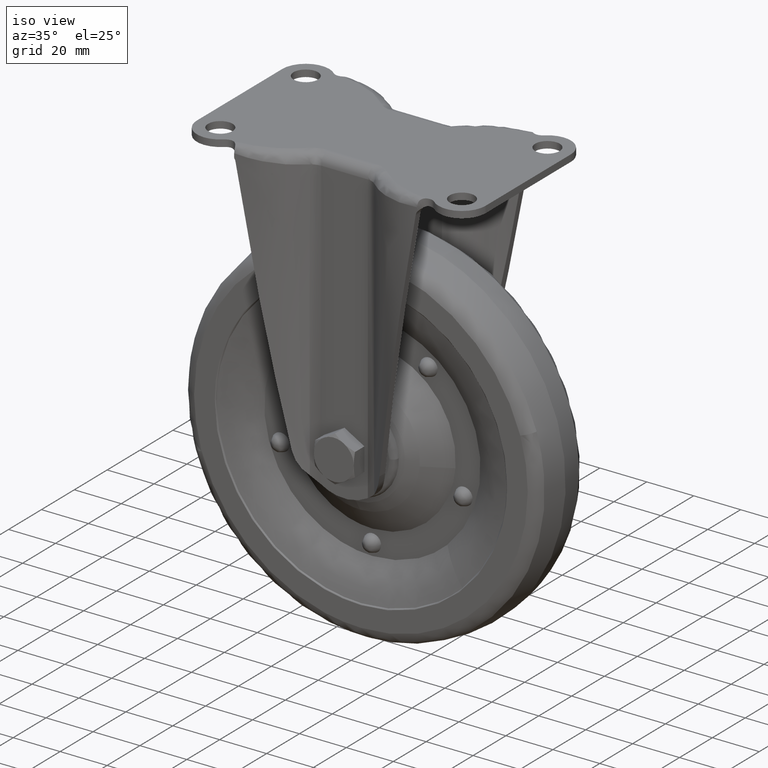
[diagram: clean part render]
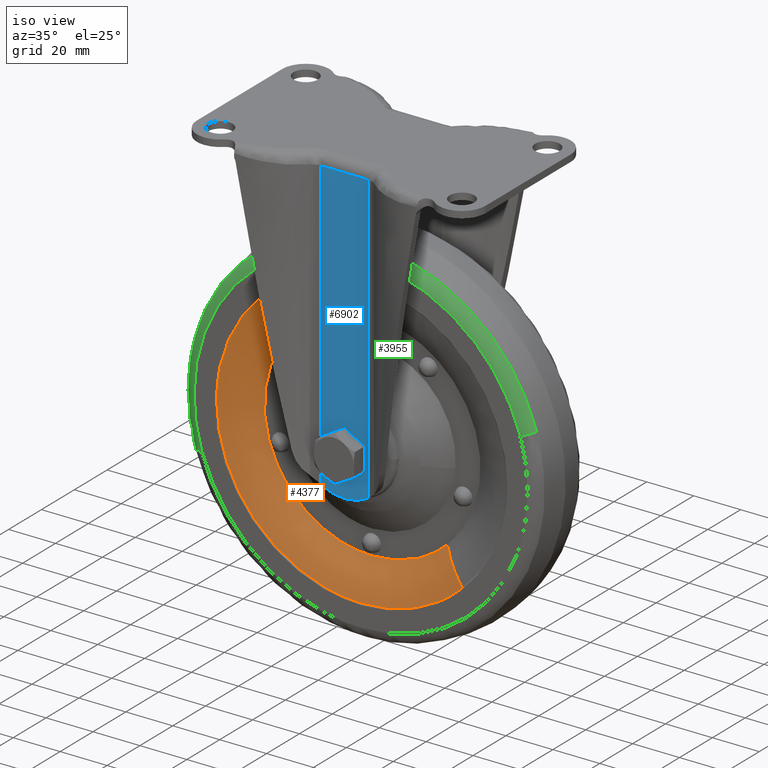
[diagram: same view with three faces highlighted in distinct colors, each labeled with its STEP entity id]
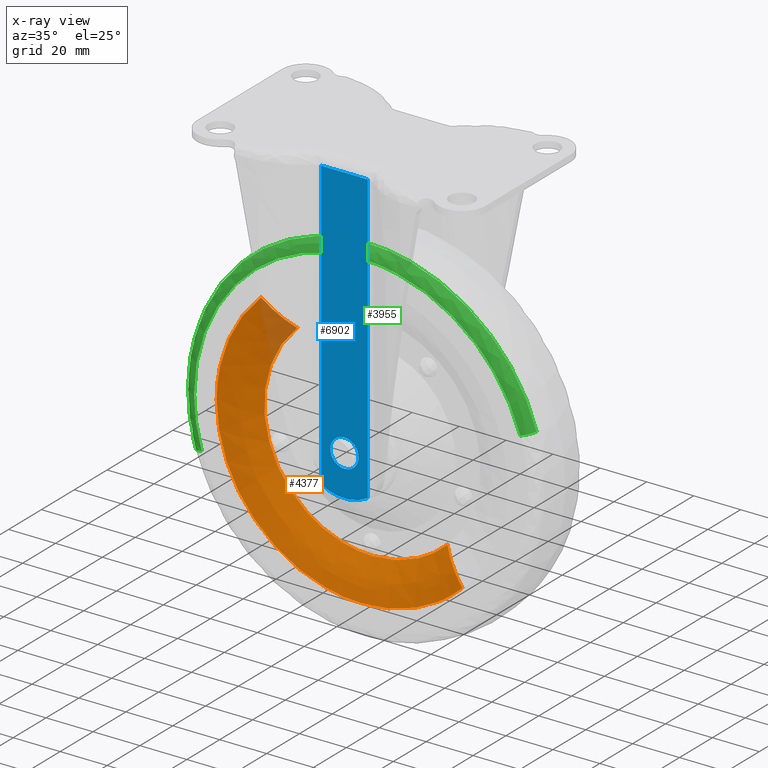
[diagram: x-ray of the same camera — body ghosted, the three highlighted faces saturated]
A machine part, iso view with three faces highlighted in distinct colors.
The next image is the same camera in x-ray (body ghosted, the three faces saturated) — at least one of them is partly hidden behind the body in this view.
Their STEP definitions:

[orange] entity #4377 — the highlighted face is a freeform B-spline surface patch.
#4091=CARTESIAN_POINT('',(-61.849999999930688,-13.500000000356600,-112.500000000000000));
#4092=VERTEX_POINT('',#4091);
#4106=CARTESIAN_POINT('',(-42.902456964330469,-13.499999999953820,-67.948886810893953));
#4107=VERTEX_POINT('',#4106);
#4108=CARTESIAN_POINT('',(-42.902456964330483,-13.499999999953822,-67.948886810893953));
#4109=CARTESIAN_POINT('',(-61.849999999792800,-13.500000000152282,-86.195258034105038));
#4110=CARTESIAN_POINT('',(-61.849999999930688,-13.500000000356595,-112.499999999999960));
#4118=(BOUNDED_CURVE()B_SPLINE_CURVE(2,(#4108,#4109,#4110),.UNSPECIFIED.,.F.,.U.)B_SPLINE_CURVE_WITH_KNOTS((3,3),(0.622155737437377,0.749999999999589),.UNSPECIFIED.)CURVE()GEOMETRIC_REPRESENTATION_ITEM()RATIONAL_B_SPLINE_CURVE((0.853629213191970,0.850221129724816,0.999999999999036))REPRESENTATION_ITEM(''));
#4119=EDGE_CURVE('',#4107,#4092,#4118,.T.);
#4166=CARTESIAN_POINT('',(42.902456964330483,-13.499999999953820,-157.051113189106100));
#4167=VERTEX_POINT('',#4166);
#4181=CARTESIAN_POINT('',(0.0,-13.500000000000000,-174.349999999999990));
#4182=VERTEX_POINT('',#4181);
#4183=CARTESIAN_POINT('',(0.0,-13.500000000000000,-174.349999999999990));
#4184=CARTESIAN_POINT('',(24.938808286003095,-13.499999999976914,-174.349999999897450));
#4185=CARTESIAN_POINT('',(42.902456964330476,-13.499999999953820,-157.051113189106080));
#4193=(BOUNDED_CURVE()B_SPLINE_CURVE(2,(#4183,#4184,#4185),.UNSPECIFIED.,.F.,.U.)B_SPLINE_CURVE_WITH_KNOTS((3,3),(0.0,0.122155737437377),.UNSPECIFIED.)CURVE()GEOMETRIC_REPRESENTATION_ITEM()RATIONAL_B_SPLINE_CURVE((1.0,0.856885651461742,0.853629213191970))REPRESENTATION_ITEM(''));
#4194=EDGE_CURVE('',#4182,#4167,#4193,.T.);
#4196=CARTESIAN_POINT('',(-61.849999999930702,-13.500000000356598,-112.500000000000060));
#4197=CARTESIAN_POINT('',(-61.850000000138770,-13.500000000185187,-174.350000000041290));
#4198=CARTESIAN_POINT('',(0.0,-13.500000000000000,-174.349999999999990));
#4206=(BOUNDED_CURVE()B_SPLINE_CURVE(2,(#4196,#4197,#4198),.UNSPECIFIED.,.F.,.U.)B_SPLINE_CURVE_WITH_KNOTS((3,3),(0.749999999999589,1.0),.UNSPECIFIED.)CURVE()GEOMETRIC_REPRESENTATION_ITEM()RATIONAL_B_SPLINE_CURVE((1.000000000000964,0.707106781186065,1.0))REPRESENTATION_ITEM(''));
#4207=EDGE_CURVE('',#4092,#4182,#4206,.T.);
#4248=CARTESIAN_POINT('',(-31.980364730992960,-7.000000000124474,-79.290693359501375));
#4249=VERTEX_POINT('',#4248);
#4250=CARTESIAN_POINT('',(-42.902456964330476,-13.499999999953815,-67.948886810893953));
#4251=CARTESIAN_POINT('',(-36.911713510880325,-12.099845049632908,-74.169842638750538));
#4252=CARTESIAN_POINT('',(-31.980364730992971,-7.000000000124474,-79.290693359501375));
#4260=(BOUNDED_CURVE()B_SPLINE_CURVE(2,(#4250,#4251,#4252),.UNSPECIFIED.,.F.,.U.)B_SPLINE_CURVE_WITH_KNOTS((3,3),(-1.419557446902914,-0.573254360863604),.UNSPECIFIED.)CURVE()GEOMETRIC_REPRESENTATION_ITEM()RATIONAL_B_SPLINE_CURVE((0.942495856574530,0.917715686593643,0.942920410176702))REPRESENTATION_ITEM(''));
#4261=EDGE_CURVE('',#4107,#4249,#4260,.T.);
#4278=CARTESIAN_POINT('',(31.980364730992971,-7.000000000124478,-145.709306640498600));
#4279=VERTEX_POINT('',#4278);
#4295=CARTESIAN_POINT('',(42.902456964330476,-13.499999999953827,-157.051113189106080));
#4296=CARTESIAN_POINT('',(36.911713510880332,-12.099845049632918,-150.830157361249460));
#4297=CARTESIAN_POINT('',(31.980364730992971,-7.000000000124478,-145.709306640498710));
#4305=(BOUNDED_CURVE()B_SPLINE_CURVE(2,(#4295,#4296,#4297),.UNSPECIFIED.,.F.,.U.)B_SPLINE_CURVE_WITH_KNOTS((3,3),(-1.419557446902916,-0.573254360863604),.UNSPECIFIED.)CURVE()GEOMETRIC_REPRESENTATION_ITEM()RATIONAL_B_SPLINE_CURVE((0.942495856574530,0.917715686593643,0.942920410176702))REPRESENTATION_ITEM(''));
#4306=EDGE_CURVE('',#4167,#4279,#4305,.T.);
#4311=CARTESIAN_POINT('',(-42.223005519337249,-13.626427341877568,-66.127796532945823));
#4312=CARTESIAN_POINT('',(-42.850543595779506,-13.626427341877568,-66.732111967304448));
#4313=CARTESIAN_POINT('',(-88.641926340734230,-13.626427341877564,-110.828941135480190));
#4314=CARTESIAN_POINT('',(-45.156492602627019,-13.626427341877569,-155.985433738107250));
#4315=CARTESIAN_POINT('',(-1.671058864519816,-13.626427341877564,-201.141926340734240));
#4316=CARTESIAN_POINT('',(44.120323880441930,-13.626427341877561,-157.045097172551750));
#4317=CARTESIAN_POINT('',(44.747861956891043,-13.626427341877561,-156.440781738186500));
#4318=CARTESIAN_POINT('',(-35.784681405869428,-12.299809463675691,-73.198806095252735));
#4319=CARTESIAN_POINT('',(-36.316530094974553,-12.299809463675684,-73.710973218866656));
#4320=CARTESIAN_POINT('',(-75.125469025481848,-12.299809463675688,-111.083750532635350));
#4321=CARTESIAN_POINT('',(-38.270859246423235,-12.299809463675688,-149.354609779058590));
#4322=CARTESIAN_POINT('',(-1.416249467364637,-12.299809463675688,-187.625469025481750));
#4323=CARTESIAN_POINT('',(37.392689463148592,-12.299809463675691,-150.252691711707430));
#4324=CARTESIAN_POINT('',(37.924538152259530,-12.299809463675688,-149.740524588087960));
#4325=CARTESIAN_POINT('',(-30.590872545519748,-6.496995746320359,-78.903003564824616));
#4326=CARTESIAN_POINT('',(-31.045528415649930,-6.496995746320359,-79.340834462989577));
#4327=CARTESIAN_POINT('',(-64.221716041433396,-6.496995746320359,-111.289305779827170));
#4328=CARTESIAN_POINT('',(-32.716205130803090,-6.496995746320359,-144.005510910630280));
#4329=CARTESIAN_POINT('',(-1.210694220172819,-6.496995746320359,-176.721716041433350));
#4330=CARTESIAN_POINT('',(31.965493405615700,-6.496995746320359,-144.773244724590850));
#4331=CARTESIAN_POINT('',(32.420149275750838,-6.496995746320360,-144.335413826421160));
#4339=(BOUNDED_SURFACE()B_SPLINE_SURFACE(2,2,((#4311,#4318,#4325),(#4312,#4319,#4326),(#4313,#4320,#4327),(#4314,#4321,#4328),(#4315,#4322,#4329),(#4316,#4323,#4330),(#4317,#4324,#4331)),.UNSPECIFIED.,.F.,.F.,.U.)B_SPLINE_SURFACE_WITH_KNOTS((3,1,2,1,3),(3,3),(0.0,2.077378571568401,105.946307150488810,209.815235729409210,211.892614301000690),(0.0,18.994429803894640),.UNSPECIFIED.)GEOMETRIC_REPRESENTATION_ITEM()RATIONAL_B_SPLINE_SURFACE(((0.956168598044759,0.925815223796504,0.956641035988430),(0.950632353219276,0.920454725917178,0.951102055733100),(0.668283867118266,0.647069334070233,0.668614062709939),(0.945096108393792,0.915094228037851,0.945563075477770),(0.668283867118266,0.647069334070233,0.668614062709939),(0.950632353219337,0.920454725917237,0.951102055733162),(0.956168598044882,0.925815223796623,0.956641035988553)))REPRESENTATION_ITEM('')SURFACE());
#4340=ORIENTED_EDGE('',*,*,#4194,.T.);
#4341=ORIENTED_EDGE('',*,*,#4306,.T.);
#4342=CARTESIAN_POINT('',(0.0,-6.999999999999968,-158.604249000000100));
#4343=VERTEX_POINT('',#4342);
#4344=CARTESIAN_POINT('',(0.0,-6.999999999999968,-158.604249000000100));
#4345=CARTESIAN_POINT('',(18.589895343403331,-7.000000000062224,-158.604249000062620));
#4346=CARTESIAN_POINT('',(31.980364730992971,-7.000000000124478,-145.709306640498600));
#4354=(BOUNDED_CURVE()B_SPLINE_CURVE(2,(#4344,#4345,#4346),.UNSPECIFIED.,.F.,.U.)B_SPLINE_CURVE_WITH_KNOTS((3,3),(0.0,0.122155737437384),.UNSPECIFIED.)CURVE()GEOMETRIC_REPRESENTATION_ITEM()RATIONAL_B_SPLINE_CURVE((1.0,0.856885651461735,0.853629213191970))REPRESENTATION_ITEM(''));
#4355=EDGE_CURVE('',#4343,#4279,#4354,.T.);
#4356=ORIENTED_EDGE('',*,*,#4355,.F.);
#4357=CARTESIAN_POINT('',(-31.980364730992964,-7.000000000124475,-79.290693359501375));
#4358=CARTESIAN_POINT('',(-46.104249000110080,-7.000000000113799,-92.891909886995961));
#4359=CARTESIAN_POINT('',(-46.104249000084479,-7.000000000087323,-112.499999999912300));
#4360=CARTESIAN_POINT('',(-46.104249000024275,-7.000000000025070,-158.604248999974860));
#4361=CARTESIAN_POINT('',(0.0,-6.999999999999968,-158.604249000000100));
#4369=(BOUNDED_CURVE()B_SPLINE_CURVE(2,(#4357,#4358,#4359,#4360,#4361),.UNSPECIFIED.,.F.,.U.)B_SPLINE_CURVE_WITH_KNOTS((3,2,3),(0.622155737437383,0.750000000000000,1.0),.UNSPECIFIED.)CURVE()GEOMETRIC_REPRESENTATION_ITEM()RATIONAL_B_SPLINE_CURVE((0.853629213191970,0.850221129724812,1.0,0.707106781186547,1.0))REPRESENTATION_ITEM(''));
#4370=EDGE_CURVE('',#4249,#4343,#4369,.T.);
#4371=ORIENTED_EDGE('',*,*,#4370,.F.);
#4372=ORIENTED_EDGE('',*,*,#4261,.F.);
#4373=ORIENTED_EDGE('',*,*,#4119,.T.);
#4374=ORIENTED_EDGE('',*,*,#4207,.T.);
#4375=EDGE_LOOP('',(#4340,#4341,#4356,#4371,#4372,#4373,#4374));
#4376=FACE_OUTER_BOUND('',#4375,.T.);
#4377=ADVANCED_FACE('',(#4376),#4339,.T.);

[blue] entity #6902 — the highlighted face is a freeform B-spline surface patch.
#5635=CARTESIAN_POINT('',(5.981503005434396,-24.0,-112.970754496505610));
#5636=VERTEX_POINT('',#5635);
#5642=CARTESIAN_POINT('',(0.0,-24.0,-106.500001000000000));
#5643=VERTEX_POINT('',#5642);
#5644=CARTESIAN_POINT('',(5.981503005434398,-24.000000000000004,-112.970754496505610));
#5645=CARTESIAN_POINT('',(5.999999000000000,-24.000000000000004,-112.735740603056120));
#5646=CARTESIAN_POINT('',(5.999999000000000,-24.0,-112.500000000000000));
#5647=CARTESIAN_POINT('',(5.999998999999999,-23.999999999999996,-106.500001000000030));
#5648=CARTESIAN_POINT('',(0.0,-24.0,-106.500001000000000));
#5656=(BOUNDED_CURVE()B_SPLINE_CURVE(2,(#5644,#5645,#5646,#5647,#5648),.UNSPECIFIED.,.F.,.U.)B_SPLINE_CURVE_WITH_KNOTS((3,2,3),(0.736331300615639,0.750000000000000,1.0),.UNSPECIFIED.)CURVE()GEOMETRIC_REPRESENTATION_ITEM()RATIONAL_B_SPLINE_CURVE((0.969723356136071,0.983986122561284,1.0,0.707106781186548,1.0))REPRESENTATION_ITEM(''));
#5657=EDGE_CURVE('',#5636,#5643,#5656,.T.);
#5659=CARTESIAN_POINT('',(-5.981503005434396,-24.0,-112.029245503494390));
#5660=VERTEX_POINT('',#5659);
#5661=CARTESIAN_POINT('',(0.0,-24.0,-106.500001000000000));
#5662=CARTESIAN_POINT('',(-5.546342025002863,-24.0,-106.500001000000040));
#5663=CARTESIAN_POINT('',(-5.981503005434398,-24.000000000000004,-112.029245503494350));
#5671=(BOUNDED_CURVE()B_SPLINE_CURVE(2,(#5661,#5662,#5663),.UNSPECIFIED.,.F.,.U.)B_SPLINE_CURVE_WITH_KNOTS((3,3),(0.0,0.236331300615639),.UNSPECIFIED.)CURVE()GEOMETRIC_REPRESENTATION_ITEM()RATIONAL_B_SPLINE_CURVE((1.0,0.723120658625264,0.969723356136070))REPRESENTATION_ITEM(''));
#5672=EDGE_CURVE('',#5643,#5660,#5671,.T.);
#5718=CARTESIAN_POINT('',(0.0,-24.0,-118.499999000000000));
#5719=VERTEX_POINT('',#5718);
#5720=CARTESIAN_POINT('',(-5.981503005434398,-24.000000000000007,-112.029245503494370));
#5721=CARTESIAN_POINT('',(-5.999998999999999,-23.999999999999996,-112.264259396943900));
#5722=CARTESIAN_POINT('',(-5.999999000000000,-24.0,-112.500000000000000));
#5723=CARTESIAN_POINT('',(-5.999998999999999,-23.999999999999996,-118.499998999999990));
#5724=CARTESIAN_POINT('',(0.0,-24.0,-118.499999000000000));
#5732=(BOUNDED_CURVE()B_SPLINE_CURVE(2,(#5720,#5721,#5722,#5723,#5724),.UNSPECIFIED.,.F.,.U.)B_SPLINE_CURVE_WITH_KNOTS((3,2,3),(0.236331300615639,0.250000000000000,0.500000000000000),.UNSPECIFIED.)CURVE()GEOMETRIC_REPRESENTATION_ITEM()RATIONAL_B_SPLINE_CURVE((0.969723356136070,0.983986122561284,1.0,0.707106781186548,1.0))REPRESENTATION_ITEM(''));
#5733=EDGE_CURVE('',#5660,#5719,#5732,.T.);
#5735=CARTESIAN_POINT('',(0.0,-24.0,-118.499999000000000));
#5736=CARTESIAN_POINT('',(5.546342025002852,-24.000000000000004,-118.499999000000000));
#5737=CARTESIAN_POINT('',(5.981503005434396,-24.000000000000004,-112.970754496505620));
#5745=(BOUNDED_CURVE()B_SPLINE_CURVE(2,(#5735,#5736,#5737),.UNSPECIFIED.,.F.,.U.)B_SPLINE_CURVE_WITH_KNOTS((3,3),(0.500000000000000,0.736331300615638),.UNSPECIFIED.)CURVE()GEOMETRIC_REPRESENTATION_ITEM()RATIONAL_B_SPLINE_CURVE((1.0,0.723120658625264,0.969723356136070))REPRESENTATION_ITEM(''));
#5746=EDGE_CURVE('',#5719,#5636,#5745,.T.);
#6727=CARTESIAN_POINT('',(-9.973044000000000,-24.0,-127.172150848835000));
#6728=VERTEX_POINT('',#6727);
#6729=CARTESIAN_POINT('',(-9.973044000000000,-24.0,-4.400000000000000));
#6730=VERTEX_POINT('',#6729);
#6731=CARTESIAN_POINT('',(-9.973044000000000,-24.0,-127.172150848835000));
#6732=CARTESIAN_POINT('',(-9.973044000000000,-24.0,-4.400000000000000));
#6733=QUASI_UNIFORM_CURVE('',1,(#6731,#6732),.UNSPECIFIED.,.F.,.U.);
#6734=EDGE_CURVE('',#6728,#6730,#6733,.T.);
#6793=CARTESIAN_POINT('',(9.973044000000000,-24.0,-4.400000000000000));
#6794=VERTEX_POINT('',#6793);
#6808=CARTESIAN_POINT('',(9.973044000000000,-24.0,-127.172150848835000));
#6809=VERTEX_POINT('',#6808);
#6810=CARTESIAN_POINT('',(9.973044000000000,-24.0,-127.172150848835000));
#6811=CARTESIAN_POINT('',(9.973044000000000,-24.0,-4.400000000000000));
#6812=QUASI_UNIFORM_CURVE('',1,(#6810,#6811),.UNSPECIFIED.,.F.,.U.);
#6813=EDGE_CURVE('',#6809,#6794,#6812,.T.);
#6869=CARTESIAN_POINT('',(-10.969351056940610,-24.0,-136.273722019252090));
#6870=CARTESIAN_POINT('',(-10.969351056940610,-24.0,1.873723233061894));
#6871=CARTESIAN_POINT('',(10.969351591936380,-24.0,-136.273722019252090));
#6872=CARTESIAN_POINT('',(10.969351591936380,-24.0,1.873723233061894));
#6873=B_SPLINE_SURFACE_WITH_KNOTS('',1,1,((#6869,#6871),(#6870,#6872)),.UNSPECIFIED.,.F.,.F.,.U.,(2,2),(2,2),(0.0,138.147445252313990),(0.0,21.938702648877001),.UNSPECIFIED.);
#6874=ORIENTED_EDGE('',*,*,#6813,.T.);
#6875=CARTESIAN_POINT('',(9.973044000000000,-24.0,-4.400000000000000));
#6876=CARTESIAN_POINT('',(-9.973044000000000,-24.0,-4.400000000000000));
#6877=QUASI_UNIFORM_CURVE('',1,(#6875,#6876),.UNSPECIFIED.,.F.,.U.);
#6878=EDGE_CURVE('',#6794,#6730,#6877,.T.);
#6879=ORIENTED_EDGE('',*,*,#6878,.T.);
#6880=ORIENTED_EDGE('',*,*,#6734,.F.);
#6881=CARTESIAN_POINT('',(9.973044000000060,-24.0,-127.172150848835100));
#6882=CARTESIAN_POINT('',(6.070873E-015,-23.999999999999996,-133.322329684633640));
#6883=CARTESIAN_POINT('',(-9.973044000000055,-24.0,-127.172150848835100));
#6891=(BOUNDED_CURVE()B_SPLINE_CURVE(2,(#6881,#6882,#6883),.UNSPECIFIED.,.F.,.U.)CURVE()GEOMETRIC_REPRESENTATION_ITEM()QUASI_UNIFORM_CURVE()RATIONAL_B_SPLINE_CURVE((1.0,0.851165720725804,1.0))REPRESENTATION_ITEM(''));
#6892=EDGE_CURVE('',#6809,#6728,#6891,.T.);
#6893=ORIENTED_EDGE('',*,*,#6892,.F.);
#6894=EDGE_LOOP('',(#6874,#6879,#6880,#6893));
#6895=FACE_OUTER_BOUND('',#6894,.T.);
#6896=ORIENTED_EDGE('',*,*,#5746,.F.);
#6897=ORIENTED_EDGE('',*,*,#5733,.F.);
#6898=ORIENTED_EDGE('',*,*,#5672,.F.);
#6899=ORIENTED_EDGE('',*,*,#5657,.F.);
#6900=EDGE_LOOP('',(#6896,#6897,#6898,#6899));
#6901=FACE_BOUND('',#6900,.T.);
#6902=ADVANCED_FACE('',(#6895,#6901),#6873,.F.);

[green] entity #3955 — the highlighted face is a freeform B-spline surface patch.
#3664=CARTESIAN_POINT('',(-72.462638396259450,-10.500000000559609,-135.041853536070190));
#3665=VERTEX_POINT('',#3664);
#3679=CARTESIAN_POINT('',(-21.629505322045979,-10.500000000024670,-39.759821118315131));
#3680=VERTEX_POINT('',#3679);
#3681=CARTESIAN_POINT('',(-21.629505322045983,-10.500000000024674,-39.759821118315131));
#3682=CARTESIAN_POINT('',(-75.887872049510420,-10.500000000248258,-55.893705443886780));
#3683=CARTESIAN_POINT('',(-75.887872049447324,-10.500000000478069,-112.499999999954100));
#3684=CARTESIAN_POINT('',(-75.887872049434478,-10.500000000524887,-124.031158819470430));
#3685=CARTESIAN_POINT('',(-72.462638396259450,-10.500000000559609,-135.041853536070280));
#3693=(BOUNDED_CURVE()B_SPLINE_CURVE(2,(#3681,#3682,#3683,#3684,#3685),.UNSPECIFIED.,.F.,.U.)B_SPLINE_CURVE_WITH_KNOTS((3,2,3),(0.548526662064657,0.750000000000000,0.800541362318723),.UNSPECIFIED.)CURVE()GEOMETRIC_REPRESENTATION_ITEM()RATIONAL_B_SPLINE_CURVE((0.908365862590212,0.763959302188107,1.0,0.940787110829009,0.905515822342253))REPRESENTATION_ITEM(''));
#3694=EDGE_CURVE('',#3680,#3665,#3693,.T.);
#3743=CARTESIAN_POINT('',(0.0,-10.499999999999860,-36.612127950406922));
#3744=VERTEX_POINT('',#3743);
#3745=CARTESIAN_POINT('',(0.0,-10.499999999999860,-36.612127950406922));
#3746=CARTESIAN_POINT('',(-11.043791007760298,-10.500000000007084,-36.612127950402616));
#3747=CARTESIAN_POINT('',(-21.629505322045983,-10.500000000024674,-39.759821118315131));
#3755=(BOUNDED_CURVE()B_SPLINE_CURVE(2,(#3745,#3746,#3747),.UNSPECIFIED.,.F.,.U.)B_SPLINE_CURVE_WITH_KNOTS((3,3),(0.500000000000000,0.548526662064657),.UNSPECIFIED.)CURVE()GEOMETRIC_REPRESENTATION_ITEM()RATIONAL_B_SPLINE_CURVE((1.0,0.943147478998440,0.908365862590212))REPRESENTATION_ITEM(''));
#3756=EDGE_CURVE('',#3744,#3680,#3755,.T.);
#3758=CARTESIAN_POINT('',(72.462638396259450,-10.500000000559609,-89.958146463929751));
#3759=VERTEX_POINT('',#3758);
#3760=CARTESIAN_POINT('',(72.462638396259450,-10.500000000559609,-89.958146463929751));
#3761=CARTESIAN_POINT('',(55.867629400297609,-10.500000000279735,-36.612127950433070));
#3762=CARTESIAN_POINT('',(0.0,-10.499999999999860,-36.612127950406922));
#3770=(BOUNDED_CURVE()B_SPLINE_CURVE(2,(#3760,#3761,#3762),.UNSPECIFIED.,.F.,.U.)B_SPLINE_CURVE_WITH_KNOTS((3,3),(0.300541362318724,0.500000000000000),.UNSPECIFIED.)CURVE()GEOMETRIC_REPRESENTATION_ITEM()RATIONAL_B_SPLINE_CURVE((0.905515822342253,0.766319670357539,1.0))REPRESENTATION_ITEM(''));
#3771=EDGE_CURVE('',#3759,#3744,#3770,.T.);
#3826=CARTESIAN_POINT('',(67.908224761148844,-14.0,-91.374944518039996));
#3827=VERTEX_POINT('',#3826);
#3828=CARTESIAN_POINT('',(72.462638396259450,-10.500000000559609,-89.958146463929751));
#3829=CARTESIAN_POINT('',(71.411619864747024,-14.000000022114712,-90.285099861024833));
#3830=CARTESIAN_POINT('',(67.908224761148844,-14.000000000000002,-91.374944518040010));
#3838=(BOUNDED_CURVE()B_SPLINE_CURVE(2,(#3828,#3829,#3830),.UNSPECIFIED.,.F.,.U.)B_SPLINE_CURVE_WITH_KNOTS((3,3),(-1.686452685997183,-0.324444350105429),.UNSPECIFIED.)CURVE()GEOMETRIC_REPRESENTATION_ITEM()RATIONAL_B_SPLINE_CURVE((0.900657974378209,0.725008789270081,0.897869645990016))REPRESENTATION_ITEM(''));
#3839=EDGE_CURVE('',#3759,#3827,#3838,.T.);
#3858=CARTESIAN_POINT('',(-67.908224761148858,-14.0,-133.625055481960000));
#3859=VERTEX_POINT('',#3858);
#3873=CARTESIAN_POINT('',(-72.462638396259450,-10.500000000559609,-135.041853536070190));
#3874=CARTESIAN_POINT('',(-71.411619864746982,-14.000000022114705,-134.714900138975140));
#3875=CARTESIAN_POINT('',(-67.908224761148858,-14.0,-133.625055481959950));
#3883=(BOUNDED_CURVE()B_SPLINE_CURVE(2,(#3873,#3874,#3875),.UNSPECIFIED.,.F.,.U.)B_SPLINE_CURVE_WITH_KNOTS((3,3),(-1.686452685997181,-0.324444350105430),.UNSPECIFIED.)CURVE()GEOMETRIC_REPRESENTATION_ITEM()RATIONAL_B_SPLINE_CURVE((0.900657974378208,0.725008789270082,0.897869645990015))REPRESENTATION_ITEM(''));
#3884=EDGE_CURVE('',#3665,#3859,#3883,.T.);
#3889=CARTESIAN_POINT('',(73.169357159183321,-10.218933965876980,-91.962486868147948));
#3890=CARTESIAN_POINT('',(72.855765909419972,-10.218933965876982,-90.954422056642230));
#3891=CARTESIAN_POINT('',(49.973047740875060,-10.218933965876980,-17.396046321604683));
#3892=CARTESIAN_POINT('',(-22.565452968760127,-10.218933965876980,-39.961499290364813));
#3893=CARTESIAN_POINT('',(-95.103953678395314,-10.218933965876980,-62.526952259124904));
#3894=CARTESIAN_POINT('',(-72.221235509790105,-10.218933965876980,-136.085327994356450));
#3895=CARTESIAN_POINT('',(-71.907644259967839,-10.218933965876980,-137.093392806051550));
#3896=CARTESIAN_POINT('',(72.197276832351662,-14.233925615775068,-92.235334864257695));
#3897=CARTESIAN_POINT('',(71.887851751274169,-14.233925615775073,-91.240662543946087));
#3898=CARTESIAN_POINT('',(49.309138442409569,-14.233925615775069,-18.659535382654521));
#3899=CARTESIAN_POINT('',(-22.265663087467946,-14.233925615775076,-40.925198470122467));
#3900=CARTESIAN_POINT('',(-93.840464617345447,-14.233925615775069,-63.190861557590395));
#3901=CARTESIAN_POINT('',(-71.261751308421381,-14.233925615775075,-135.771988719073310));
#3902=CARTESIAN_POINT('',(-70.952326227285766,-14.233925615775073,-136.766661039571770));
#3903=CARTESIAN_POINT('',(68.216704201477683,-13.991413826084795,-93.352620376292634));
#3904=CARTESIAN_POINT('',(67.924339168411478,-13.991413826084800,-92.412788980578711));
#3905=CARTESIAN_POINT('',(46.590495641080544,-13.991413826084800,-23.833397909238382));
#3906=CARTESIAN_POINT('',(-21.038053224840525,-13.991413826084797,-44.871451134078910));
#3907=CARTESIAN_POINT('',(-88.666602090761614,-13.991413826084800,-65.909504358919435));
#3908=CARTESIAN_POINT('',(-67.332758563374526,-13.991413826084795,-134.488895430440520));
#3909=CARTESIAN_POINT('',(-67.040393530253354,-13.991413826084802,-135.428726826331090));
#3917=(BOUNDED_SURFACE()B_SPLINE_SURFACE(2,2,((#3889,#3896,#3903),(#3890,#3897,#3904),(#3891,#3898,#3905),(#3892,#3899,#3906),(#3893,#3900,#3907),(#3894,#3901,#3908),(#3895,#3902,#3909)),.UNSPECIFIED.,.F.,.F.,.U.)B_SPLINE_SURFACE_WITH_KNOTS((3,1,2,1,3),(3,3),(0.0,2.517335549094931,128.384113003329900,254.250890457564910,256.768226007141210),(0.0,7.207009329471216),.UNSPECIFIED.)GEOMETRIC_REPRESENTATION_ITEM()RATIONAL_B_SPLINE_SURFACE(((0.929842475414401,0.715011059749141,0.926739678157388),(0.924458659627520,0.710871124294422,0.921373827659572),(0.649884054497683,0.499734416104585,0.647715452272050),(0.919074843840639,0.706731188839703,0.916007977161756),(0.649884054497683,0.499734416104585,0.647715452272050),(0.924458659628550,0.710871124295214,0.921373827660598),(0.929842475416460,0.715011059750725,0.926739678159440)))REPRESENTATION_ITEM('')SURFACE());
#3918=ORIENTED_EDGE('',*,*,#3756,.T.);
#3919=ORIENTED_EDGE('',*,*,#3694,.T.);
#3920=ORIENTED_EDGE('',*,*,#3884,.T.);
#3921=CARTESIAN_POINT('',(0.0,-14.0,-41.381824000000002));
#3922=VERTEX_POINT('',#3921);
#3923=CARTESIAN_POINT('',(0.0,-14.0,-41.381824000000002));
#3924=CARTESIAN_POINT('',(-71.118176004348186,-13.999999999999996,-41.381824001352626));
#3925=CARTESIAN_POINT('',(-71.118176010254544,-14.0,-112.500000003190000));
#3926=CARTESIAN_POINT('',(-71.118176011152016,-13.999999999999991,-123.306403718280360));
#3927=CARTESIAN_POINT('',(-67.908224761148844,-13.999999999999993,-133.625055481960000));
#3935=(BOUNDED_CURVE()B_SPLINE_CURVE(2,(#3923,#3924,#3925,#3926,#3927),.UNSPECIFIED.,.F.,.U.)B_SPLINE_CURVE_WITH_KNOTS((3,2,3),(0.500000000000000,0.750000000000000,0.800541362319608),.UNSPECIFIED.)CURVE()GEOMETRIC_REPRESENTATION_ITEM()RATIONAL_B_SPLINE_CURVE((1.0,0.707106781186547,1.0,0.940787110827972,0.905515822341018))REPRESENTATION_ITEM(''));
#3936=EDGE_CURVE('',#3922,#3859,#3935,.T.);
#3937=ORIENTED_EDGE('',*,*,#3936,.F.);
#3938=CARTESIAN_POINT('',(67.908224761148844,-13.999999999999993,-91.374944518039996));
#3939=CARTESIAN_POINT('',(52.356243409063197,-14.000000000000004,-41.381823998162638));
#3940=CARTESIAN_POINT('',(0.0,-14.0,-41.381824000000002));
#3948=(BOUNDED_CURVE()B_SPLINE_CURVE(2,(#3938,#3939,#3940),.UNSPECIFIED.,.F.,.U.)B_SPLINE_CURVE_WITH_KNOTS((3,3),(0.300541362319608,0.500000000000000),.UNSPECIFIED.)CURVE()GEOMETRIC_REPRESENTATION_ITEM()RATIONAL_B_SPLINE_CURVE((0.905515822341018,0.766319670358576,1.0))REPRESENTATION_ITEM(''));
#3949=EDGE_CURVE('',#3827,#3922,#3948,.T.);
#3950=ORIENTED_EDGE('',*,*,#3949,.F.);
#3951=ORIENTED_EDGE('',*,*,#3839,.F.);
#3952=ORIENTED_EDGE('',*,*,#3771,.T.);
#3953=EDGE_LOOP('',(#3918,#3919,#3920,#3937,#3950,#3951,#3952));
#3954=FACE_OUTER_BOUND('',#3953,.T.);
#3955=ADVANCED_FACE('',(#3954),#3917,.T.);